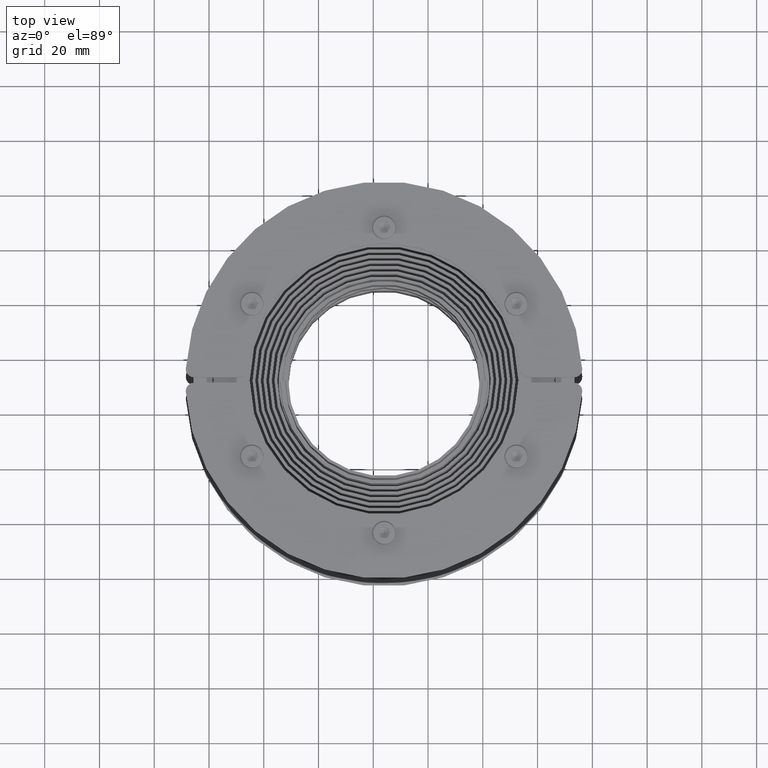
[diagram: clean part render]
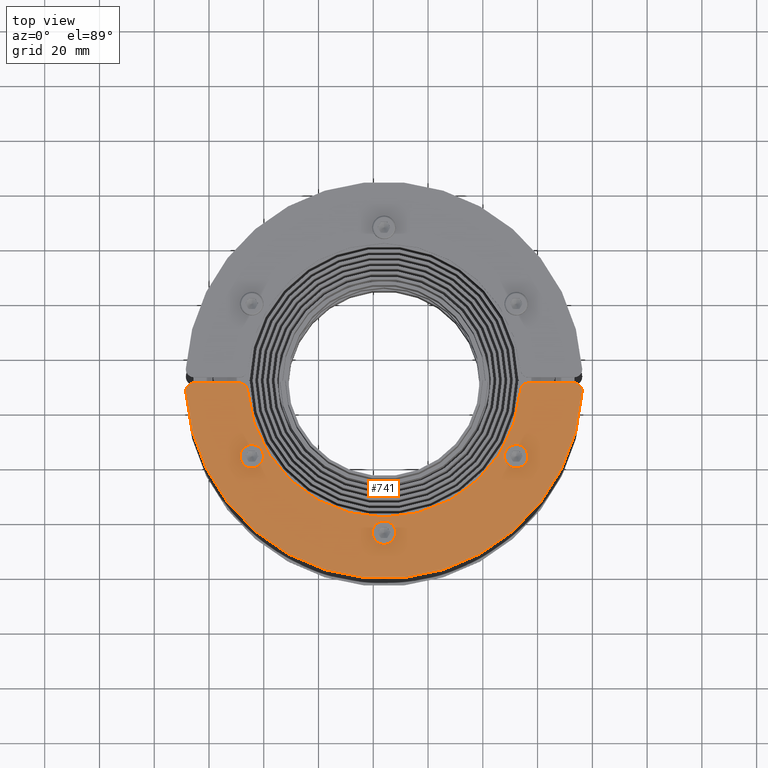
[diagram: same view with one face highlighted and labeled with its STEP entity id]
A machine part, top view. The second image highlights one B-rep face of the part: STEP entity #741.
In plain terms, the highlighted planar face has unit normal (0, 0, -1).
Its self-contained STEP definition (entity closure, byte-faithful):
#163=CARTESIAN_POINT('',(-45.280916260981257,-8.875000000000796,-1.250000000000000));
#164=VERTEX_POINT('',#163);
#173=CARTESIAN_POINT('',(-51.280916260981257,-8.875000000000796,-1.250000000000000));
#174=VERTEX_POINT('',#173);
#175=CARTESIAN_POINT('',(-48.280916260981257,-8.875000000000796,-1.250000000000000));
#176=DIRECTION('',(0.0,0.0,-1.0));
#177=DIRECTION('',(1.0,0.0,0.0));
#178=AXIS2_PLACEMENT_3D('',#175,#176,#177);
#179=CIRCLE('',#178,3.0);
#180=EDGE_CURVE('',#164,#174,#179,.T.);
#205=CARTESIAN_POINT('',(3.000000000000227,18.999999999999886,-1.250000000000000));
#206=VERTEX_POINT('',#205);
#215=CARTESIAN_POINT('',(-2.999999999999773,18.999999999999886,-1.250000000000000));
#216=VERTEX_POINT('',#215);
#217=CARTESIAN_POINT('',(2.273737E-013,18.999999999999886,-1.250000000000000));
#218=DIRECTION('',(0.0,0.0,-1.0));
#219=DIRECTION('',(1.0,0.0,0.0));
#220=AXIS2_PLACEMENT_3D('',#217,#218,#219);
#221=CIRCLE('',#220,3.0);
#222=EDGE_CURVE('',#206,#216,#221,.T.);
#247=CARTESIAN_POINT('',(51.280916260983531,-8.874999999999204,-1.250000000000000));
#248=VERTEX_POINT('',#247);
#257=CARTESIAN_POINT('',(45.280916260983531,-8.874999999999204,-1.250000000000000));
#258=VERTEX_POINT('',#257);
#259=CARTESIAN_POINT('',(48.280916260983531,-8.874999999999204,-1.250000000000000));
#260=DIRECTION('',(0.0,0.0,-1.0));
#261=DIRECTION('',(1.0,0.0,0.0));
#262=AXIS2_PLACEMENT_3D('',#259,#260,#261);
#263=CIRCLE('',#262,3.0);
#264=EDGE_CURVE('',#248,#258,#263,.T.);
#289=CARTESIAN_POINT('',(72.384796605596648,-32.750000000000114,-1.250000000000000));
#290=VERTEX_POINT('',#289);
#299=CARTESIAN_POINT('',(72.379823797204779,-32.577338129496525,-1.250000000000000));
#300=VERTEX_POINT('',#299);
#301=CARTESIAN_POINT('',(69.384796605596648,-32.750000000000114,-1.250000000000000));
#302=DIRECTION('',(0.0,0.0,-1.0));
#303=DIRECTION('',(1.0,0.0,0.0));
#304=AXIS2_PLACEMENT_3D('',#301,#302,#303);
#305=CIRCLE('',#304,3.0);
#306=EDGE_CURVE('',#300,#290,#305,.T.);
#333=CARTESIAN_POINT('',(-72.384796605596648,-32.750000000000114,-1.250000000000000));
#334=VERTEX_POINT('',#333);
#350=CARTESIAN_POINT('',(-72.379823797205233,-32.577338129496525,-1.250000000000000));
#351=VERTEX_POINT('',#350);
#358=CARTESIAN_POINT('',(-69.384796605596648,-32.750000000000114,-1.250000000000000));
#359=DIRECTION('',(0.0,0.0,-1.0));
#360=DIRECTION('',(1.0,0.0,0.0));
#361=AXIS2_PLACEMENT_3D('',#358,#359,#360);
#362=CIRCLE('',#361,3.0);
#363=EDGE_CURVE('',#334,#351,#362,.T.);
#383=CARTESIAN_POINT('',(52.848841046895132,-35.750000000000114,-1.250000000000000));
#384=VERTEX_POINT('',#383);
#391=CARTESIAN_POINT('',(69.384796605596648,-35.750000000000114,-1.250000000000000));
#392=VERTEX_POINT('',#391);
#393=CARTESIAN_POINT('',(69.384796605596648,-35.750000000000114,-1.250000000000000));
#394=DIRECTION('',(-1.0,0.0,0.0));
#395=VECTOR('',#394,16.535955558701517);
#396=LINE('',#393,#395);
#397=EDGE_CURVE('',#392,#384,#396,.T.);
#422=CARTESIAN_POINT('',(49.857397214051900,-32.976415094339870,-1.250000000000000));
#423=VERTEX_POINT('',#422);
#430=CARTESIAN_POINT('',(52.848841046895132,-32.750000000000114,-1.250000000000000));
#431=DIRECTION('',(0.0,0.0,-1.0));
#432=DIRECTION('',(1.0,0.0,0.0));
#433=AXIS2_PLACEMENT_3D('',#430,#431,#432);
#434=CIRCLE('',#433,3.0);
#435=EDGE_CURVE('',#384,#423,#434,.T.);
#455=CARTESIAN_POINT('',(-49.857397214052014,-32.976415094339757,-1.250000000000000));
#456=VERTEX_POINT('',#455);
#463=CARTESIAN_POINT('',(-2.273737E-013,-36.750000000000114,-1.250000000000000));
#464=DIRECTION('',(0.0,0.0,1.0));
#465=DIRECTION('',(1.0,0.0,0.0));
#466=AXIS2_PLACEMENT_3D('',#463,#464,#465);
#467=CIRCLE('',#466,50.0);
#468=EDGE_CURVE('',#423,#456,#467,.T.);
#488=CARTESIAN_POINT('',(-52.848841046895132,-35.750000000000114,-1.250000000000000));
#489=VERTEX_POINT('',#488);
#496=CARTESIAN_POINT('',(-52.848841046895132,-32.750000000000114,-1.250000000000000));
#497=DIRECTION('',(0.0,0.0,-1.0));
#498=DIRECTION('',(1.0,0.0,0.0));
#499=AXIS2_PLACEMENT_3D('',#496,#497,#498);
#500=CIRCLE('',#499,3.0);
#501=EDGE_CURVE('',#456,#489,#500,.T.);
#520=CARTESIAN_POINT('',(-69.384796605596648,-35.750000000000114,-1.250000000000000));
#521=VERTEX_POINT('',#520);
#528=CARTESIAN_POINT('',(-52.848841046895132,-35.750000000000114,-1.250000000000000));
#529=DIRECTION('',(-1.0,0.0,0.0));
#530=VECTOR('',#529,16.535955558701517);
#531=LINE('',#528,#530);
#532=EDGE_CURVE('',#489,#521,#531,.T.);
#544=CARTESIAN_POINT('',(-69.384796605596648,-32.750000000000114,-1.250000000000000));
#545=DIRECTION('',(0.0,0.0,-1.0));
#546=DIRECTION('',(1.0,0.0,0.0));
#547=AXIS2_PLACEMENT_3D('',#544,#545,#546);
#548=CIRCLE('',#547,3.0);
#549=EDGE_CURVE('',#521,#334,#548,.T.);
#575=CARTESIAN_POINT('',(-2.273737E-013,-36.750000000000114,-1.250000000000000));
#576=DIRECTION('',(0.0,0.0,-1.0));
#577=DIRECTION('',(1.0,0.0,0.0));
#578=AXIS2_PLACEMENT_3D('',#575,#576,#577);
#579=CIRCLE('',#578,72.500000000000213);
#580=EDGE_CURVE('',#351,#300,#579,.T.);
#600=CARTESIAN_POINT('',(69.384796605596648,-32.750000000000114,-1.250000000000000));
#601=DIRECTION('',(0.0,0.0,-1.0));
#602=DIRECTION('',(1.0,0.0,0.0));
#603=AXIS2_PLACEMENT_3D('',#600,#601,#602);
#604=CIRCLE('',#603,3.0);
#605=EDGE_CURVE('',#290,#392,#604,.T.);
#624=CARTESIAN_POINT('',(48.280916260983531,-8.874999999999204,-1.250000000000000));
#625=DIRECTION('',(0.0,0.0,-1.0));
#626=DIRECTION('',(1.0,0.0,0.0));
#627=AXIS2_PLACEMENT_3D('',#624,#625,#626);
#628=CIRCLE('',#627,3.0);
#629=EDGE_CURVE('',#258,#248,#628,.T.);
#648=CARTESIAN_POINT('',(2.273737E-013,18.999999999999886,-1.250000000000000));
#649=DIRECTION('',(0.0,0.0,-1.0));
#650=DIRECTION('',(1.0,0.0,0.0));
#651=AXIS2_PLACEMENT_3D('',#648,#649,#650);
#652=CIRCLE('',#651,3.0);
#653=EDGE_CURVE('',#216,#206,#652,.T.);
#672=CARTESIAN_POINT('',(-48.280916260981257,-8.875000000000796,-1.250000000000000));
#673=DIRECTION('',(0.0,0.0,-1.0));
#674=DIRECTION('',(1.0,0.0,0.0));
#675=AXIS2_PLACEMENT_3D('',#672,#673,#674);
#676=CIRCLE('',#675,3.0);
#677=EDGE_CURVE('',#174,#164,#676,.T.);
#712=CARTESIAN_POINT('',(-2.273737E-013,-3.062636201634575,-1.250000000000000));
#713=DIRECTION('',(0.0,0.0,1.0));
#714=DIRECTION('',(1.0,0.0,0.0));
#715=AXIS2_PLACEMENT_3D('',#712,#713,#714);
#716=PLANE('',#715);
#717=ORIENTED_EDGE('',*,*,#306,.T.);
#718=ORIENTED_EDGE('',*,*,#605,.T.);
#719=ORIENTED_EDGE('',*,*,#397,.T.);
#720=ORIENTED_EDGE('',*,*,#435,.T.);
#721=ORIENTED_EDGE('',*,*,#468,.T.);
#722=ORIENTED_EDGE('',*,*,#501,.T.);
#723=ORIENTED_EDGE('',*,*,#532,.T.);
#724=ORIENTED_EDGE('',*,*,#549,.T.);
#725=ORIENTED_EDGE('',*,*,#363,.T.);
#726=ORIENTED_EDGE('',*,*,#580,.T.);
#727=EDGE_LOOP('',(#717,#718,#719,#720,#721,#722,#723,#724,#725,#726));
#728=FACE_OUTER_BOUND('',#727,.T.);
#729=ORIENTED_EDGE('',*,*,#180,.F.);
#730=ORIENTED_EDGE('',*,*,#677,.F.);
#731=EDGE_LOOP('',(#729,#730));
#732=FACE_BOUND('',#731,.T.);
#733=ORIENTED_EDGE('',*,*,#222,.F.);
#734=ORIENTED_EDGE('',*,*,#653,.F.);
#735=EDGE_LOOP('',(#733,#734));
#736=FACE_BOUND('',#735,.T.);
#737=ORIENTED_EDGE('',*,*,#264,.F.);
#738=ORIENTED_EDGE('',*,*,#629,.F.);
#739=EDGE_LOOP('',(#737,#738));
#740=FACE_BOUND('',#739,.T.);
#741=ADVANCED_FACE('',(#728,#732,#736,#740),#716,.F.);